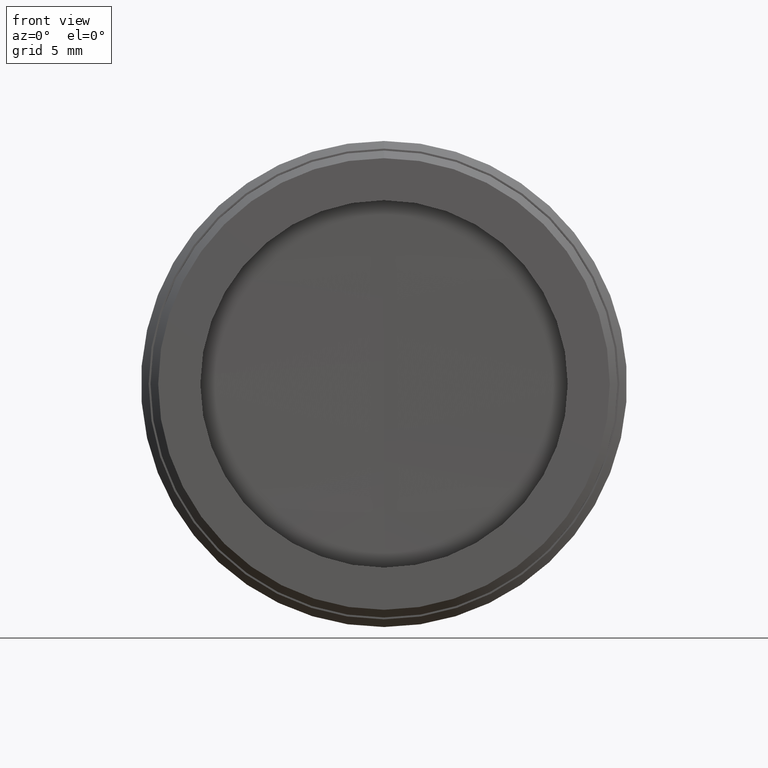
[diagram: clean part render]
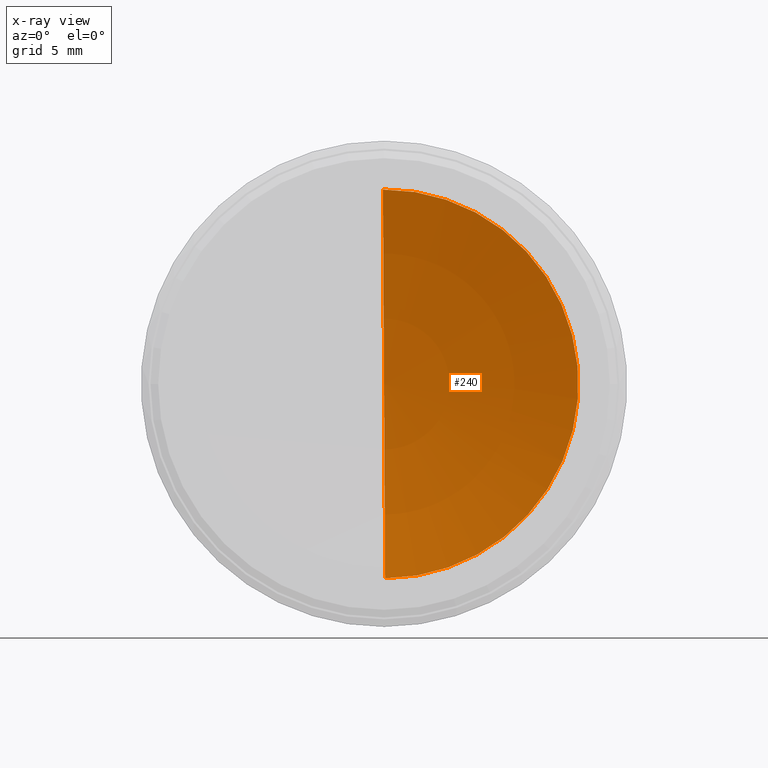
[diagram: x-ray — body ghosted, one internal face saturated and labeled with its STEP entity id]
A machine part, front view, then the same camera in x-ray: the body is ghosted and one INTERNAL B-rep face — a face not visible from any outside direction — is saturated and labeled: STEP entity #240.
In plain terms, the highlighted spherical surface has radius 49.9 mm.
Its self-contained STEP definition (entity closure, byte-faithful):
#70 = ORIENTED_EDGE ( 'NONE', *, *, #1071, .T. ) ;
#158 = DIRECTION ( 'NONE',  ( 2.711503366901265217E-19, -1.000000000000000000, 1.390596485637714611E-16 ) ) ;
#233 = DIRECTION ( 'NONE',  ( -0.005561413065056295714, 1.365923996832131363E-16, 0.9999845352227803019 ) ) ;
#240 = ADVANCED_FACE ( 'NONE', ( #298 ), #1360, .T. ) ;
#273 = DIRECTION ( 'NONE',  ( -0.005561413065056616638, 1.390559900582610931E-16, 0.9999845352227803019 ) ) ;
#298 = FACE_OUTER_BOUND ( 'NONE', #1510, .T. ) ;
#381 = ORIENTED_EDGE ( 'NONE', *, *, #723, .T. ) ;
#394 = VERTEX_POINT ( 'NONE', #696 ) ;
#406 = CIRCLE ( 'NONE', #918, 12.70000000000000107 ) ;
#448 = CARTESIAN_POINT ( 'NONE',  ( -62.96855859389896892, -39.61241068674758736, 19.92647029529290847 ) ) ;
#696 = CARTESIAN_POINT ( 'NONE',  ( -62.89792864797274774, 8.644402303751908434, 7.226666697963588959 ) ) ;
#720 = VERTEX_POINT ( 'NONE', #1021 ) ;
#723 = EDGE_CURVE ( 'NONE', #394, #720, #887, .T. ) ;
#814 = DIRECTION ( 'NONE',  ( 0.9999845352227803019, 1.044514289755347016E-18, 0.005561413065056792712 ) ) ;
#887 = CIRCLE ( 'NONE', #1106, 49.89999999999999858 ) ;
#918 = AXIS2_PLACEMENT_3D ( 'NONE', #1169, #1402, #233 ) ;
#1021 = CARTESIAN_POINT ( 'NONE',  ( -63.03918853982518300, 8.644402303751908434, 32.62627389262220845 ) ) ;
#1071 = EDGE_CURVE ( 'NONE', #720, #394, #406, .T. ) ;
#1106 = AXIS2_PLACEMENT_3D ( 'NONE', #448, #814, #1487 ) ;
#1128 = CARTESIAN_POINT ( 'NONE',  ( -62.96855859389896892, -39.61241068674758736, 19.92647029529290847 ) ) ;
#1169 = CARTESIAN_POINT ( 'NONE',  ( -62.96855859389896892, 8.644402303751908434, 19.92647029529289782 ) ) ;
#1312 = AXIS2_PLACEMENT_3D ( 'NONE', #1128, #158, #273 ) ;
#1360 = SPHERICAL_SURFACE ( 'NONE', #1312, 49.89999999999999858 ) ;
#1402 = DIRECTION ( 'NONE',  ( -3.659266894335748121E-32, 1.000000000000000000, -1.878145495644178128E-16 ) ) ;
#1487 = DIRECTION ( 'NONE',  ( -0.005561413065056894194, 1.390559900582610931E-16, 0.9999845352227801909 ) ) ;
#1510 = EDGE_LOOP ( 'NONE', ( #70, #381 ) ) ;